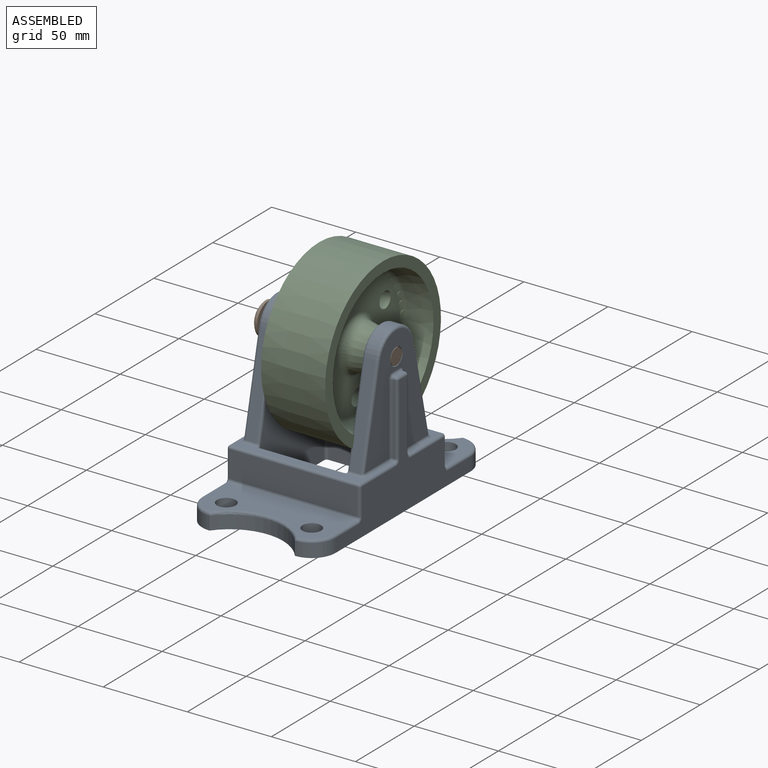
[diagram: assembled view]
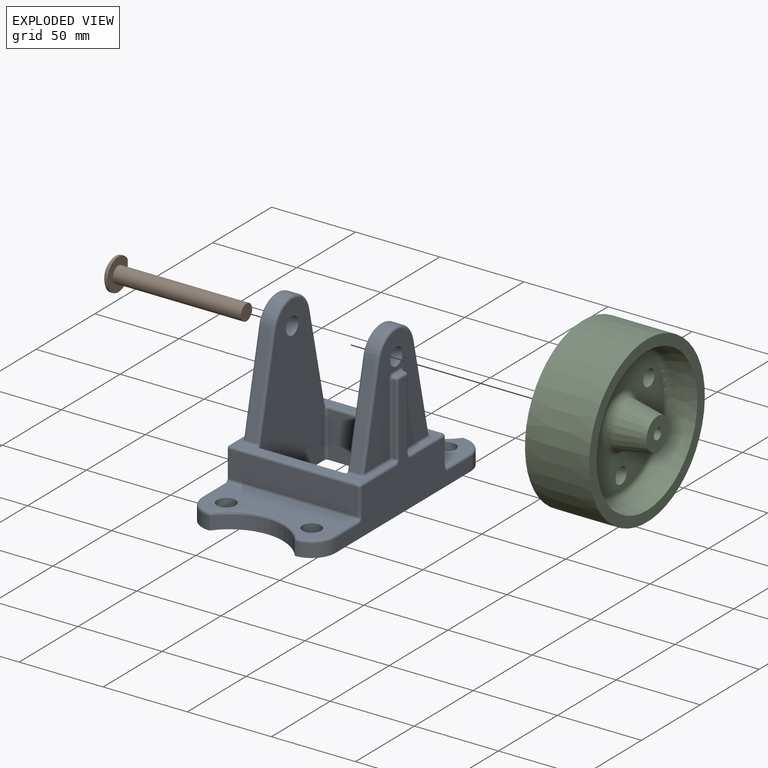
[diagram: exploded view]
GUIDED TOUR — MATED ASSEMBLY (Onshape document 58230be8d45119105e5aa3c1, AutoMate assembly 58230be8d45119105e5aa3c1_2b48d5b937ecebb5b1fbca23_7c05164726b510f3bff91f8a_default)

This assembly has 3 components, labeled P0..P2 below (a component is one placed occurrence of a part; the same part can appear more than once), held together by 2 mates. A mate is a constraint between two components; its type names the relative motion it leaves free:
  FASTENED — locks the two components together rigidly (no relative motion).
Axis/direction vectors are unit vectors and 'through' points are millimeter coordinates, both in the assembly's world frame.

MATES
  1. FASTENED "Fastened 2": P2 <-> P0, direction (-1.000, 0.000, 0.000) through (52.51, 43.15, -19.47) mm
  2. FASTENED "Fastened 1": P1 <-> P0, direction (1.000, 0.000, 0.000) through (54.09, 43.15, -19.47) mm

ASSEMBLY ORDER
  1. P0 — the base component [order heuristic]
  2. P2 — core [order heuristic]
  3. P1 [order verified]
Order-tag legend:
  [order verified] — this step's position reverses a verified removal order: the component was checked to insert without passing through the ones already placed.
  [order heuristic] — the first 2 components form the assembly's core: parts whose collision-free extraction could not be verified, listed in mate-graph order.

Of the 3 components, 2 carry the full construction recipe — the FeatureScript program that regenerates the part's solid from scratch; the rest are supplied as boundary geometry only.
Each toured component is shown spotlighted twice — in the assembled view, then in the exploded view, where a leader line traces a displaced component back to its assembled socket (saturated green if recipe-attached, orange if geometry-only; every other component desaturated gray) — followed by its recipe or geometry summary and the mates that hold it.
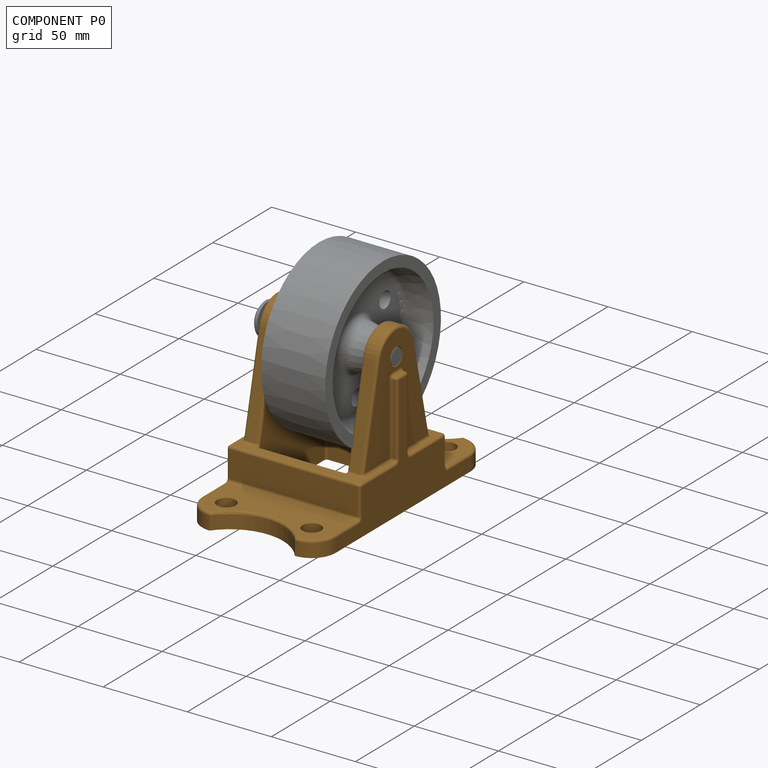
[diagram: component P0 — assembled]
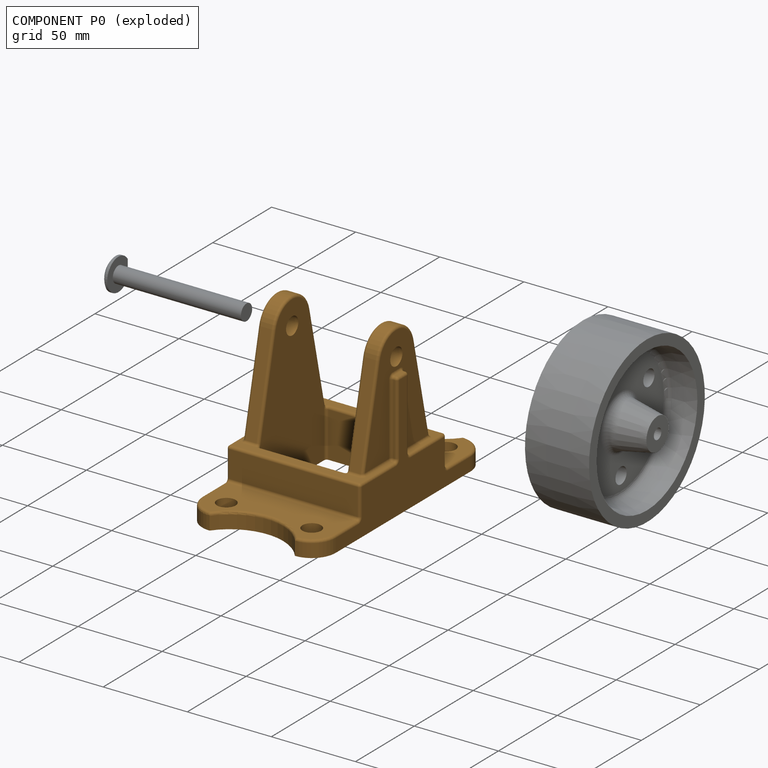
[diagram: component P0 — exploded]
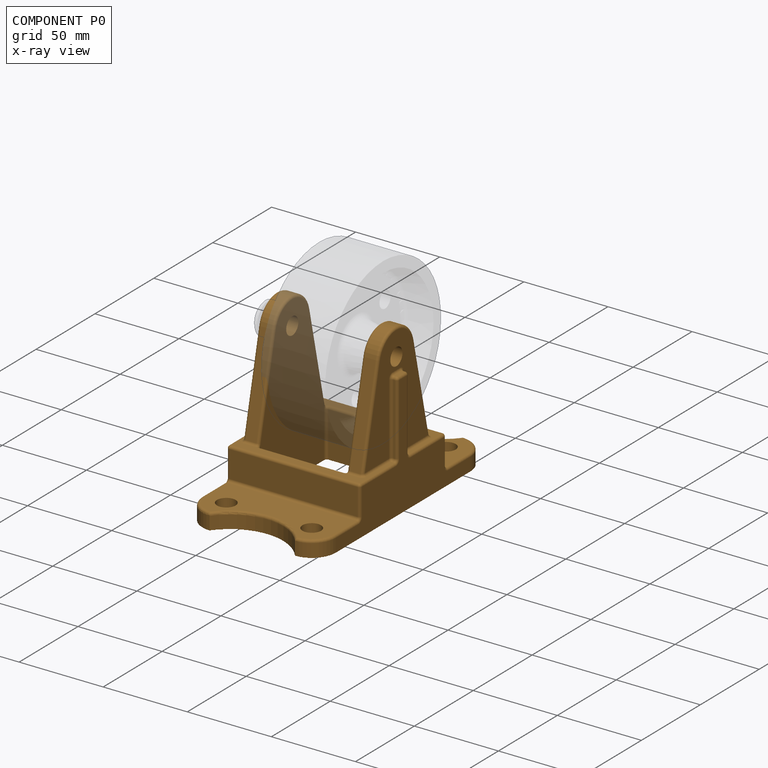
[diagram: component P0 — x-ray view]
COMPONENT P0 — geometry summary (no construction recipe available for this part):
  bounding box: 145.2 x 99.7 x 81.7 mm
  B-rep topology: 1 solid, 147 faces, 688 edges
  volume: 173903 mm^3 (15% of its bounding box)
  symmetry: 2-fold rotationally symmetric about the z axis; mirror-symmetric across its x mid-plane, y mid-plane
Held by: FASTENED mate "Fastened 2" to P2; FASTENED mate "Fastened 1" to P1.
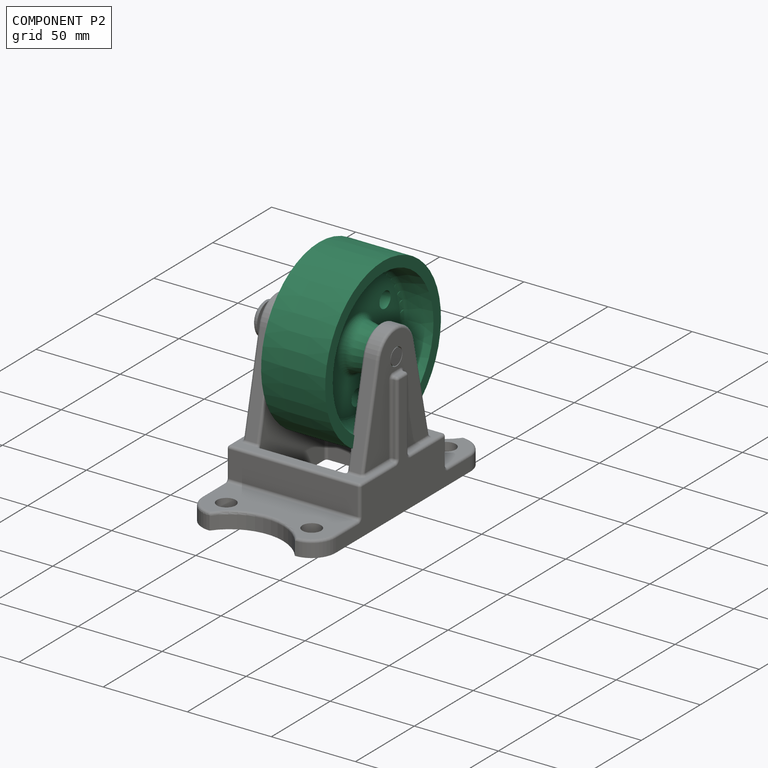
[diagram: component P2 — assembled]
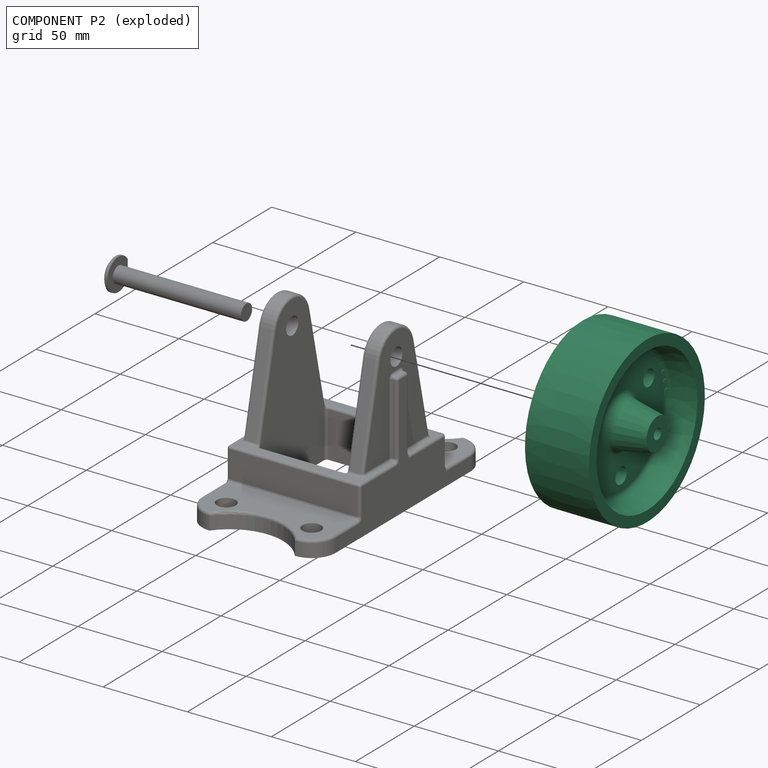
[diagram: component P2 — exploded]
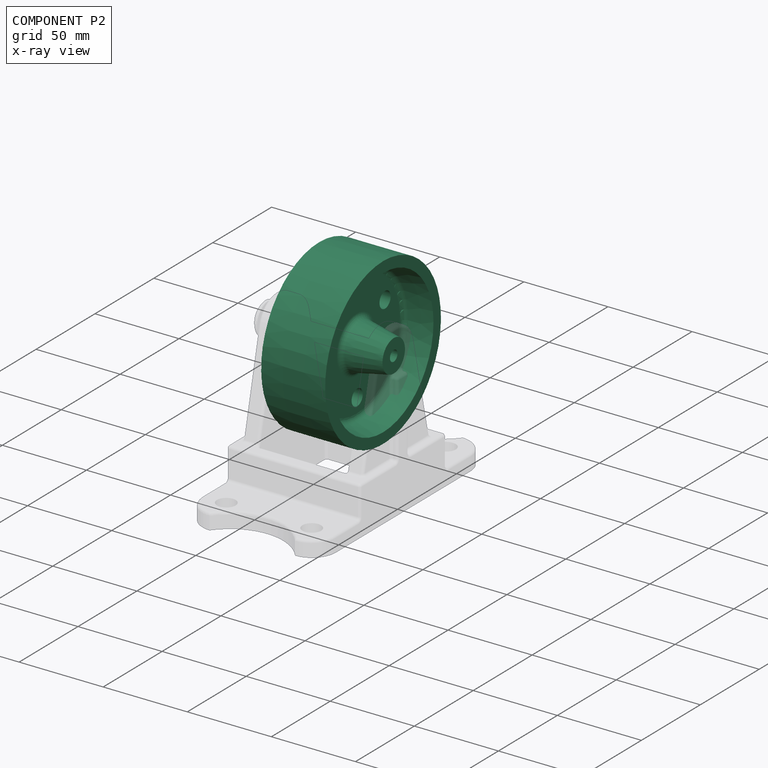
[diagram: component P2 — x-ray view]
COMPONENT P2 — recipe-attached (CADFS 00320480, mesh-verified: the recipe's output STEP matches this component's geometry to below the mesh-comparison resolution (tessellation chordal tolerance ~0.222 mm)).
Held by: FASTENED mate "Fastened 2" to P0.
Construction recipe (FeatureScript — the CAD program that rebuilds this solid; sketch coordinates are in the units given by the * unit suffixes, e.g. mm):

FeatureScript 1511;
import(path : "onshape/std/geometry.fs", version : "1511.0");
import(path : "onshape/std/common.fs", version : "1511.0");
const mm = millimeter;
const VERTEX = EntityType.VERTEX;
const EDGE = EntityType.EDGE;
const FACE = EntityType.FACE;
const BODY = EntityType.BODY;
function v(x, y){return vector(x, y);}
function OD(order){return orderDisambiguation(order);}
function OSD(set){return originalSetDisambiguation(set);}
function TD(topology){return topologyDisambiguation(topology);}
function TDD(query){return trueDependencyDisambiguation(query);}
function sQuery(a, b, c) {return sketchEntityQuery(a, b, c);}

annotation { "Feature Type Name" : "Feature", "Feature Type Description" : "" }
export const myFeature = defineFeature(function(context is Context, id is Id, definition is map)
    precondition{}
    {
        {
            var Q0;
            Q0=qCreatedBy(makeId("Front.planeOp"),FACE);
            var sketch = newSketch(context, id + "F0", { "sketchPlane" : qUnion([Q0])});
            skLineSegment(sketch, "E0", {"start": v(25.4, -2.34) * mm, "end": v(25.4, 4.01) * mm});
            skLineSegment(sketch, "E1", {"start": v(5.73, 7.92) * mm, "end": v(25.4, 4.01) * mm});
            skLineSegment(sketch, "E2", {"start": v(3.17, 11.04) * mm, "end": v(3.17, 31.5) * mm});
            skLineSegment(sketch, "E3", {"start": v(19.05, 43.64) * mm, "end": v(19.05, 37.29) * mm});
            skLineSegment(sketch, "E4", {"start": v(19.05, 37.29) * mm, "end": v(5.73, 34.62) * mm});
            skPoint(sketch, "E5.visualSharp", {"position": v(3.17, 34.11) * mm});
            skArc(sketch, "E5.filletArc", {"start": v(5.73, 34.62) * mm, "mid": v(3.9, 33.52) * mm, "end": v(3.17, 31.5) * mm});
            skPoint(sketch, "E6.visualSharp", {"position": v(3.17, 8.43) * mm});
            skArc(sketch, "E6.filletArc", {"start": v(3.17, 11.04) * mm, "mid": v(3.9, 9.02) * mm, "end": v(5.73, 7.92) * mm});
            skArc(sketch, "E7.MirrorCS", {"start": v(-3.17, 11.01) * mm, "mid": v(-3.9, 9) * mm, "end": v(-5.73, 7.9) * mm});
            skArc(sketch, "E8.MirrorCS", {"start": v(-5.73, 34.6) * mm, "mid": v(-3.9, 33.5) * mm, "end": v(-3.17, 31.49) * mm});
            skLineSegment(sketch, "E9.MirrorCS", {"start": v(-25.4, -2.36) * mm, "end": v(-25.4, 3.99) * mm});
            skPoint(sketch, "E10.MirrorP", {"position": v(-3.17, 34.11) * mm});
            skLineSegment(sketch, "E11.MirrorCS", {"start": v(-5.73, 7.9) * mm, "end": v(-25.4, 3.99) * mm});
            skLineSegment(sketch, "E12.MirrorCS", {"start": v(-3.17, 11.01) * mm, "end": v(-3.17, 31.49) * mm});
            skPoint(sketch, "E13.MirrorP", {"position": v(-3.17, 8.43) * mm});
            skLineSegment(sketch, "E14.MirrorCS", {"start": v(-19.05, 43.61) * mm, "end": v(-19.05, 37.26) * mm});
            skLineSegment(sketch, "E15.MirrorCS", {"start": v(-19.05, 37.26) * mm, "end": v(-5.73, 34.6) * mm});
            skLineSegment(sketch, "E16", {"start": v(-25.4, -5.54) * mm, "end": v(26.14, -5.54) * mm});
            skLineSegment(sketch, "E17", {"start": v(-19.05, 43.61) * mm, "end": v(19.05, 43.64) * mm});
            skLineSegment(sketch, "E18", {"start": v(25.4, -2.34) * mm, "end": v(-25.4, -2.36) * mm});
            skSolve(sketch);
        }
        {
            var Q0;
            Q0=makeQuery(id+"F0.imprint","IMPRINT",FACE,{"disambiguationData":[TD([[makeQuery(id+"F0.imprint","IMPRINT",EDGE,{"derivedFrom":sQuery(id+"F0.wireOp",EDGE,"E0")}),1.0]])]});
            var Q1;
            Q1=sQuery(id+"F0.wireOp",EDGE,"E16");
            revolve(context, id + "F1", {"entities" : qUnion([Q0]), "axis" : qUnion([Q1]), "revolveType" : RevolveType.FULL});
        }
        {
            var Q0;
            Q0=makeQuery(id+"F1.opRevolve","SWEPT_FACE",FACE,{"disambiguationData":[OSD([sQuery(id+"F0.wireOp",EDGE,"E0")])]});
            var sketch = newSketch(context, id + "F2", { "sketchPlane" : qUnion([Q0])});
            skCircle(sketch, "E19", {"center": v(24.39, 9.36) * mm, "radius": 4.76 * mm});
            skCircle(sketch, "E20", {"center": v(-25.1, 8.14) * mm, "radius": 4.76 * mm});
            skCircle(sketch, "E21", {"center": v(0.7, -34.1) * mm, "radius": 4.76 * mm});
            skSolve(sketch);
        }
        {
            var Q0;
            Q0=makeQuery(id+"F2.imprint","IMPRINT",FACE,{"disambiguationData":[TD([[makeQuery(id+"F2.imprint","IMPRINT",EDGE,{"derivedFrom":sQuery(id+"F2.wireOp",EDGE,"E20")}),1.0]])]});
            extrude(context, id + "F3", {"entities" : qUnion([Q0]), "operationType" : NewBodyOperationType.REMOVE, "endBound" : BoundingType.THROUGH_ALL, "oppositeDirection" : true, "depth" : 25.4 * mm});
        }
        {
            var Q0;
            Q0=makeQuery(id+"F2.imprint","IMPRINT",FACE,{"disambiguationData":[TD([[makeQuery(id+"F2.imprint","IMPRINT",EDGE,{"derivedFrom":sQuery(id+"F2.wireOp",EDGE,"E21")}),1.0]])]});
            extrude(context, id + "F4", {"entities" : qUnion([Q0]), "operationType" : NewBodyOperationType.REMOVE, "endBound" : BoundingType.THROUGH_ALL, "oppositeDirection" : true, "depth" : 25.4 * mm});
        }
        {
            var Q0;
            Q0=makeQuery(id+"F2.imprint","IMPRINT",FACE,{"disambiguationData":[TD([[makeQuery(id+"F2.imprint","IMPRINT",EDGE,{"derivedFrom":sQuery(id+"F2.wireOp",EDGE,"E19")}),1.0]])]});
            extrude(context, id + "F5", {"entities" : qUnion([Q0]), "operationType" : NewBodyOperationType.REMOVE, "endBound" : BoundingType.THROUGH_ALL, "oppositeDirection" : true, "depth" : 25.4 * mm});
        }
    });
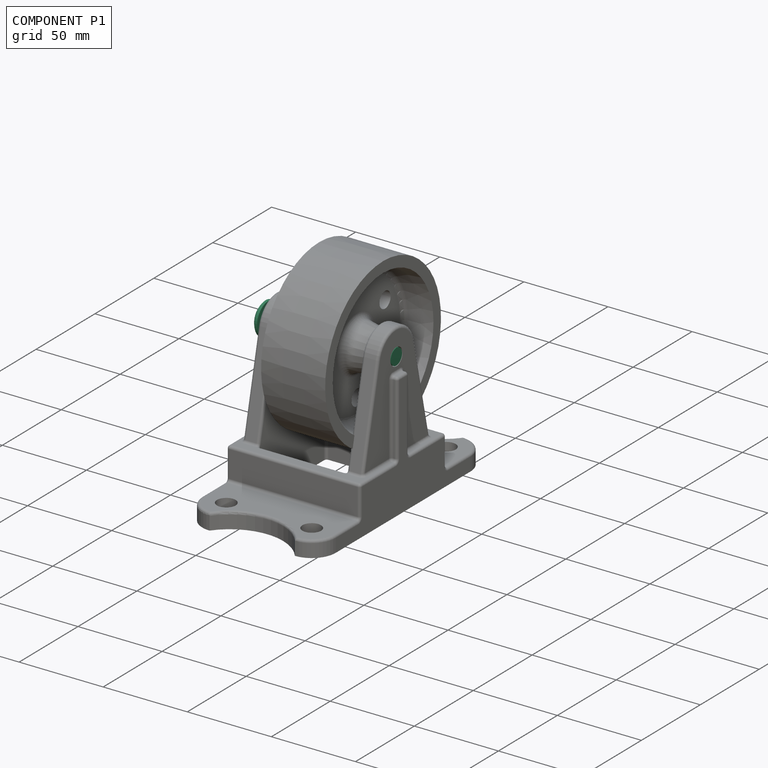
[diagram: component P1 — assembled]
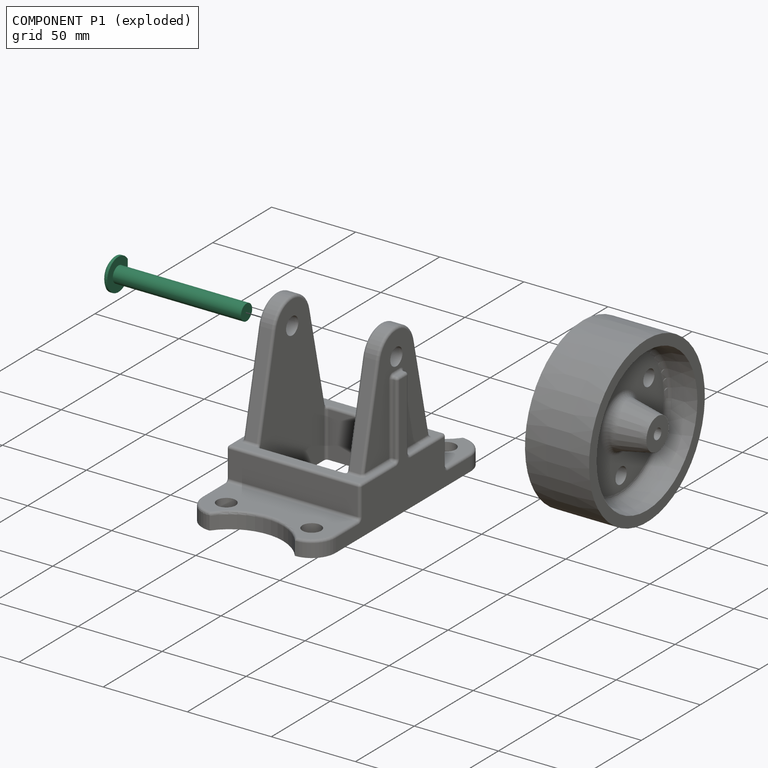
[diagram: component P1 — exploded]
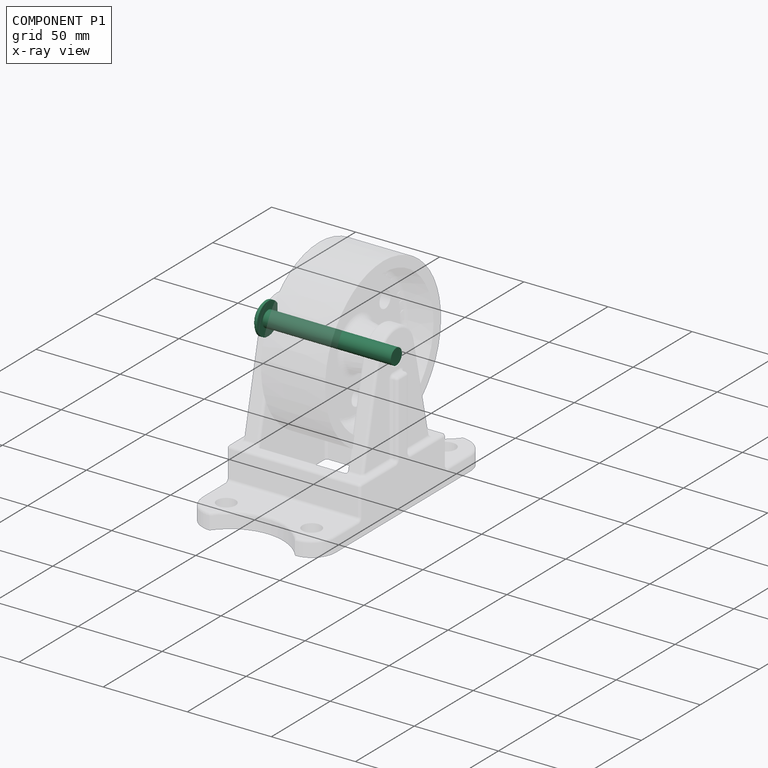
[diagram: component P1 — x-ray view]
COMPONENT P1 — recipe-attached (CADFS 00320481, mesh-verified: the recipe's output STEP matches this component's geometry to below the mesh-comparison resolution (tessellation chordal tolerance ~0.127 mm)).
Held by: FASTENED mate "Fastened 1" to P0.
Construction recipe (FeatureScript — the CAD program that rebuilds this solid; sketch coordinates are in the units given by the * unit suffixes, e.g. mm):

FeatureScript 1511;
import(path : "onshape/std/geometry.fs", version : "1511.0");
import(path : "onshape/std/common.fs", version : "1511.0");
const mm = millimeter;
const VERTEX = EntityType.VERTEX;
const EDGE = EntityType.EDGE;
const FACE = EntityType.FACE;
const BODY = EntityType.BODY;
function v(x, y){return vector(x, y);}
function OD(order){return orderDisambiguation(order);}
function OSD(set){return originalSetDisambiguation(set);}
function TD(topology){return topologyDisambiguation(topology);}
function TDD(query){return trueDependencyDisambiguation(query);}
function sQuery(a, b, c) {return sketchEntityQuery(a, b, c);}

annotation { "Feature Type Name" : "Feature", "Feature Type Description" : "" }
export const myFeature = defineFeature(function(context is Context, id is Id, definition is map)
    precondition{}
    {
        {
            var Q0;
            Q0=qCreatedBy(makeId("Front.planeOp"),FACE);
            var sketch = newSketch(context, id + "F0", { "sketchPlane" : qUnion([Q0])});
            skLineSegment(sketch, "E0", {"start": v(0, 0) * mm, "end": v(0, 76.2) * mm});
            skLineSegment(sketch, "E1", {"start": v(0, 76.2) * mm, "end": v(0, 77.79) * mm});
            skLineSegment(sketch, "E2", {"start": v(0, 77.79) * mm, "end": v(0, 80.96) * mm});
            skLineSegment(sketch, "E3", {"start": v(0, 80.96) * mm, "end": v(1.72, 80.96) * mm});
            skLineSegment(sketch, "E4", {"start": v(0, 77.79) * mm, "end": v(9.53, 77.79) * mm});
            skPoint(sketch, "E5.visualSharp", {"position": v(6.65, 80.96) * mm});
            skArc(sketch, "E5.filletArc", {"start": v(9.5, 77.79) * mm, "mid": v(5.92, 80.14) * mm, "end": v(1.72, 80.96) * mm});
            skLineSegment(sketch, "E6", {"start": v(0, 76.2) * mm, "end": v(9.53, 76.2) * mm});
            skLineSegment(sketch, "E7", {"start": v(9.53, 76.2) * mm, "end": v(9.53, 77.79) * mm});
            skLineSegment(sketch, "E8", {"start": v(0, 0) * mm, "end": v(4.76, 0) * mm});
            skLineSegment(sketch, "E9", {"start": v(4.76, 0) * mm, "end": v(4.76, 76.2) * mm});
            skSolve(sketch);
        }
        {
            var Q0;
            {var subQ0=sQuery(id+"F0.wireOp",EDGE,"E2");Q0=makeQuery(id+"F0.imprint","IMPRINT",FACE,{"disambiguationData":[TD([[makeQuery(id+"F0.imprint","IMPRINT",EDGE,{"derivedFrom":subQ0}),-1.0]])]});}
            var Q1;
            {var subQ1=sQuery(id+"F0.wireOp",EDGE,"E1");Q1=makeQuery(id+"F0.imprint","IMPRINT",FACE,{"disambiguationData":[TD([[makeQuery(id+"F0.imprint","IMPRINT",EDGE,{"derivedFrom":subQ1}),-1.0]])]});}
            var Q2;
            {var subQ0=sQuery(id+"F0.wireOp",EDGE,"E0");Q2=makeQuery(id+"F0.imprint","IMPRINT",FACE,{"disambiguationData":[TD([[makeQuery(id+"F0.imprint","IMPRINT",EDGE,{"derivedFrom":subQ0}),-1.0]])]});}
            var Q3;
            Q3=sQuery(id+"F0.wireOp",EDGE,"E0");
            revolve(context, id + "F1", {"entities" : qUnion([Q0, Q1, Q2]), "axis" : qUnion([Q3]), "revolveType" : RevolveType.FULL});
        }
        {
            var Q0;
            Q0=makeQuery(id+"F1.opRevolve","SWEPT_FACE",FACE,{"disambiguationData":[OSD([sQuery(id+"F0.wireOp",EDGE,"E3")])]});
            var sketch = newSketch(context, id + "F2", { "sketchPlane" : qUnion([Q0])});
            skCircle(sketch, "E10", {"center": v(0, 0) * mm, "radius": 6.66 * mm});
            skLineSegment(sketch, "E11", {"start": v(0, 0) * mm, "end": v(0, 7.94) * mm});
            skLineSegment(sketch, "E12", {"start": v(0, 7.94) * mm, "end": v(8.71, 7.94) * mm});
            skLineSegment(sketch, "E13", {"start": v(0, 7.94) * mm, "end": v(-8.71, 7.94) * mm});
            skLineSegment(sketch, "E14", {"start": v(8.71, 7.94) * mm, "end": v(8.71, 10.1) * mm});
            skLineSegment(sketch, "E15", {"start": v(8.71, 10.1) * mm, "end": v(-8.71, 10.1) * mm});
            skLineSegment(sketch, "E16", {"start": v(-8.71, 10.1) * mm, "end": v(-8.71, 7.94) * mm});
            skSolve(sketch);
        }
        {
            var Q0;
            Q0=makeQuery(id+"F2.imprint","IMPRINT",FACE,{"disambiguationData":[TD([[makeQuery(id+"F2.imprint","IMPRINT",EDGE,{"derivedFrom":sQuery(id+"F2.wireOp",EDGE,"E12")}),1.0]])]});
            extrude(context, id + "F3", {"entities" : qUnion([Q0]), "operationType" : NewBodyOperationType.REMOVE, "oppositeDirection" : true, "depth" : 25.4 * mm});
        }
    });
PROVENANCE & LICENSES
Assembly (occurrences, transforms, mates, per-part STEP geometry): AutoMate dataset, Zenodo record 7776208, CC0.
Construction recipes: CADFS (HuggingFace VladPyatov/CADFS, CC-BY-4.0, layered over the ABC dataset), FeatureScript reconstruction programs keyed by ABC model id.
Join: ABC meta listings map ABC model id -> Onshape documentId; within a shared document, parts are matched by geometric signature (bounding-box dims + volume at 0.1% relative tolerance, exact B-rep face/solid counts).
Verification: 2 of this assembly's 3 components carry a recipe attachment, and every attachment is mesh-verified: the CADFS STEP and the AutoMate member STEP were compared as meshes in their shared local frame (symmetric sampled-point-to-mesh distance); worst across the 2 attachments: below the mesh-comparison resolution (tessellation chordal tolerance ~0.222 mm) on a 148 mm part.
Renders: orthographic iso camera (az 35 / el 25); the floor grid conveys scale (grid pitch printed in each image; no ruler). In the exploded view each component is displaced by its stored offset vector: the offsets alone carry the explosion direction (mate normal/axis signs are not orientation cues and do not encode it), and separation distances are assigned per mate-chain, not proportionally to assembly-order depth.
